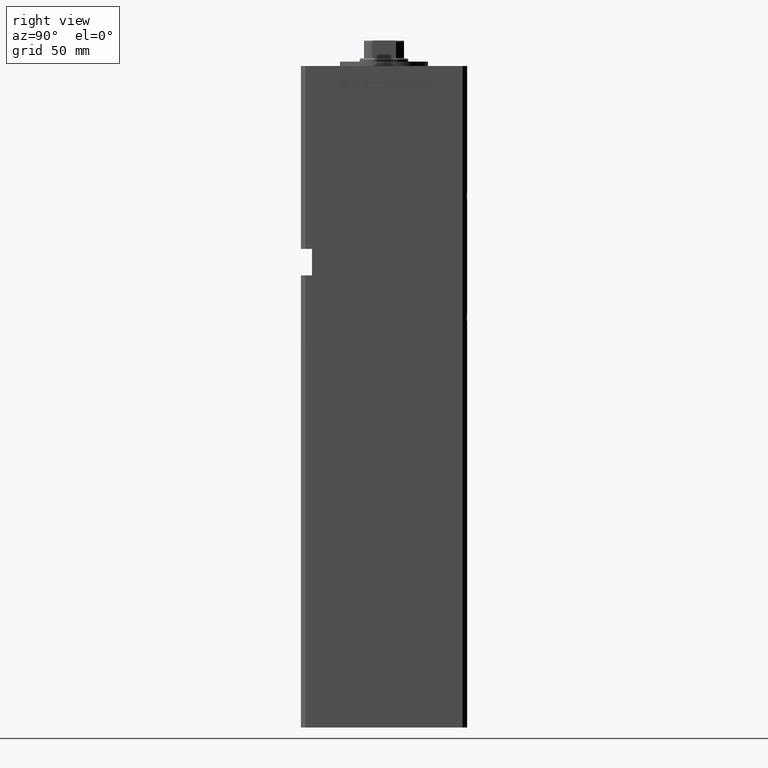
[diagram: clean part render]
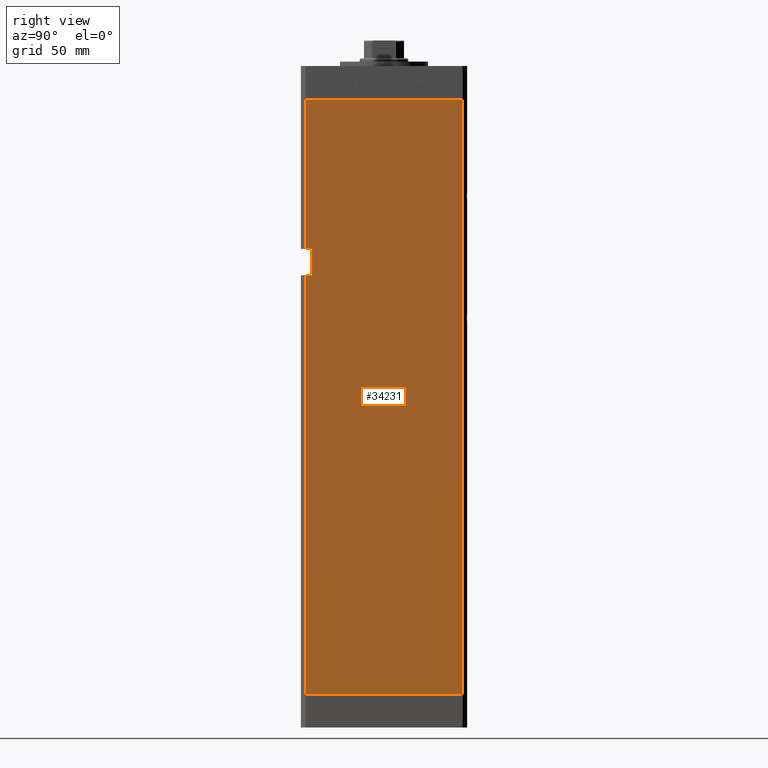
[diagram: same view with one face highlighted and labeled with its STEP entity id]
A machine part, right view. The second image highlights one B-rep face of the part: STEP entity #34231.
In plain terms, the highlighted planar face has unit normal (1, -0, 0).
Its self-contained STEP definition (entity closure, byte-faithful):
#145 = DIRECTION ( 'NONE',  ( -0.000000000000000000, -0.000000000000000000, -1.000000000000000000 ) ) ;
#693 = CARTESIAN_POINT ( 'NONE',  ( 42.49999999999998579, -32.50000000000000000, 189.0000000000000000 ) ) ;
#1636 = CARTESIAN_POINT ( 'NONE',  ( 42.49999999999998579, -35.50000000000000711, 268.5000000000000000 ) ) ;
#2444 = LINE ( 'NONE', #1636, #25527 ) ;
#3653 = EDGE_CURVE ( 'NONE', #10554, #17617, #35038, .T. ) ;
#4894 = EDGE_CURVE ( 'NONE', #35503, #36148, #13409, .T. ) ;
#6445 = DIRECTION ( 'NONE',  ( 3.909236002201255146E-16, 1.000000000000000000, 0.000000000000000000 ) ) ;
#6924 = EDGE_CURVE ( 'NONE', #9733, #29706, #46845, .T. ) ;
#8149 = VECTOR ( 'NONE', #21292, 1000.000000000000000 ) ;
#9202 = CARTESIAN_POINT ( 'NONE',  ( 42.50000000000001421, 35.50000000000000711, 0.000000000000000000 ) ) ;
#9206 = DIRECTION ( 'NONE',  ( -3.909236002201255146E-16, -1.000000000000000000, 0.000000000000000000 ) ) ;
#9229 = CARTESIAN_POINT ( 'NONE',  ( 42.50000000000001421, 35.50000000000000711, 0.000000000000000000 ) ) ;
#9376 = CARTESIAN_POINT ( 'NONE',  ( 42.49999999999998579, -32.50000000000000711, 189.0000000000000000 ) ) ;
#9733 = VERTEX_POINT ( 'NONE', #9229 ) ;
#10554 = VERTEX_POINT ( 'NONE', #31662 ) ;
#11236 = VECTOR ( 'NONE', #45776, 1000.000000000000000 ) ;
#13409 = LINE ( 'NONE', #9376, #50200 ) ;
#13449 = EDGE_LOOP ( 'NONE', ( #32692, #49719, #33671, #32900, #21900, #24078, #40776, #18375 ) ) ;
#13501 = CARTESIAN_POINT ( 'NONE',  ( 42.50000000000001421, 35.50000000000000711, 268.5000000000000000 ) ) ;
#13669 = DIRECTION ( 'NONE',  ( -0.000000000000000000, -1.000000000000000000, -0.000000000000000000 ) ) ;
#14496 = PLANE ( 'NONE',  #41370 ) ;
#16253 = LINE ( 'NONE', #52617, #37795 ) ;
#17243 = CARTESIAN_POINT ( 'NONE',  ( 42.49999999999998579, -35.50000000000000711, 268.5000000000000000 ) ) ;
#17617 = VERTEX_POINT ( 'NONE', #22920 ) ;
#18375 = ORIENTED_EDGE ( 'NONE', *, *, #33542, .F. ) ;
#18532 = FACE_OUTER_BOUND ( 'NONE', #13449, .T. ) ;
#18546 = EDGE_CURVE ( 'NONE', #51093, #17617, #2444, .T. ) ;
#18657 = DIRECTION ( 'NONE',  ( -0.000000000000000000, -0.000000000000000000, 1.000000000000000000 ) ) ;
#19917 = VERTEX_POINT ( 'NONE', #27870 ) ;
#21011 = LINE ( 'NONE', #17243, #11236 ) ;
#21292 = DIRECTION ( 'NONE',  ( -3.909236002201255146E-16, -1.000000000000000000, 0.000000000000000000 ) ) ;
#21900 = ORIENTED_EDGE ( 'NONE', *, *, #33808, .T. ) ;
#22920 = CARTESIAN_POINT ( 'NONE',  ( 42.49999999999998579, -35.50000000000000711, 201.0000000000000000 ) ) ;
#24078 = ORIENTED_EDGE ( 'NONE', *, *, #18546, .T. ) ;
#25527 = VECTOR ( 'NONE', #43601, 1000.000000000000000 ) ;
#26120 = LINE ( 'NONE', #13501, #39650 ) ;
#27756 = EDGE_CURVE ( 'NONE', #36148, #29706, #21011, .T. ) ;
#27870 = CARTESIAN_POINT ( 'NONE',  ( 42.50000000000001421, 35.50000000000000711, 268.5000000000000000 ) ) ;
#29706 = VERTEX_POINT ( 'NONE', #38703 ) ;
#30298 = CARTESIAN_POINT ( 'NONE',  ( 42.49999999999998579, -35.50000000000000711, 189.0000000000000000 ) ) ;
#30760 = CARTESIAN_POINT ( 'NONE',  ( 42.49999999999998579, -32.50000000000000711, 201.0000000000000000 ) ) ;
#30905 = CARTESIAN_POINT ( 'NONE',  ( 42.50000000000001421, 35.50000000000000711, 268.5000000000000000 ) ) ;
#31521 = CARTESIAN_POINT ( 'NONE',  ( 42.49999999999998579, -35.50000000000000711, 268.5000000000000000 ) ) ;
#31662 = CARTESIAN_POINT ( 'NONE',  ( 42.49999999999998579, -32.50000000000000711, 201.0000000000000000 ) ) ;
#32692 = ORIENTED_EDGE ( 'NONE', *, *, #4894, .T. ) ;
#32900 = ORIENTED_EDGE ( 'NONE', *, *, #43411, .F. ) ;
#33542 = EDGE_CURVE ( 'NONE', #35503, #10554, #43157, .T. ) ;
#33671 = ORIENTED_EDGE ( 'NONE', *, *, #6924, .F. ) ;
#33808 = EDGE_CURVE ( 'NONE', #19917, #51093, #26120, .T. ) ;
#34231 = ADVANCED_FACE ( 'NONE', ( #18532 ), #14496, .T. ) ;
#35038 = LINE ( 'NONE', #52260, #42238 ) ;
#35316 = DIRECTION ( 'NONE',  ( -0.000000000000000000, -1.000000000000000000, -0.000000000000000000 ) ) ;
#35503 = VERTEX_POINT ( 'NONE', #693 ) ;
#36148 = VERTEX_POINT ( 'NONE', #30298 ) ;
#36186 = VECTOR ( 'NONE', #18657, 1000.000000000000000 ) ;
#37795 = VECTOR ( 'NONE', #145, 1000.000000000000000 ) ;
#38703 = CARTESIAN_POINT ( 'NONE',  ( 42.49999999999998579, -35.50000000000000711, 0.000000000000000000 ) ) ;
#39650 = VECTOR ( 'NONE', #9206, 1000.000000000000000 ) ;
#40776 = ORIENTED_EDGE ( 'NONE', *, *, #3653, .F. ) ;
#41370 = AXIS2_PLACEMENT_3D ( 'NONE', #30905, #47331, #6445 ) ;
#42238 = VECTOR ( 'NONE', #35316, 1000.000000000000000 ) ;
#43157 = LINE ( 'NONE', #30760, #36186 ) ;
#43411 = EDGE_CURVE ( 'NONE', #19917, #9733, #16253, .T. ) ;
#43601 = DIRECTION ( 'NONE',  ( -0.000000000000000000, -0.000000000000000000, -1.000000000000000000 ) ) ;
#45776 = DIRECTION ( 'NONE',  ( -0.000000000000000000, -0.000000000000000000, -1.000000000000000000 ) ) ;
#46845 = LINE ( 'NONE', #9202, #8149 ) ;
#47331 = DIRECTION ( 'NONE',  ( 1.000000000000000000, -3.909236002201255146E-16, 0.000000000000000000 ) ) ;
#49719 = ORIENTED_EDGE ( 'NONE', *, *, #27756, .T. ) ;
#50200 = VECTOR ( 'NONE', #13669, 1000.000000000000000 ) ;
#51093 = VERTEX_POINT ( 'NONE', #31521 ) ;
#52260 = CARTESIAN_POINT ( 'NONE',  ( 42.49999999999998579, -32.50000000000000711, 201.0000000000000000 ) ) ;
#52617 = CARTESIAN_POINT ( 'NONE',  ( 42.50000000000001421, 35.50000000000000711, 268.5000000000000000 ) ) ;